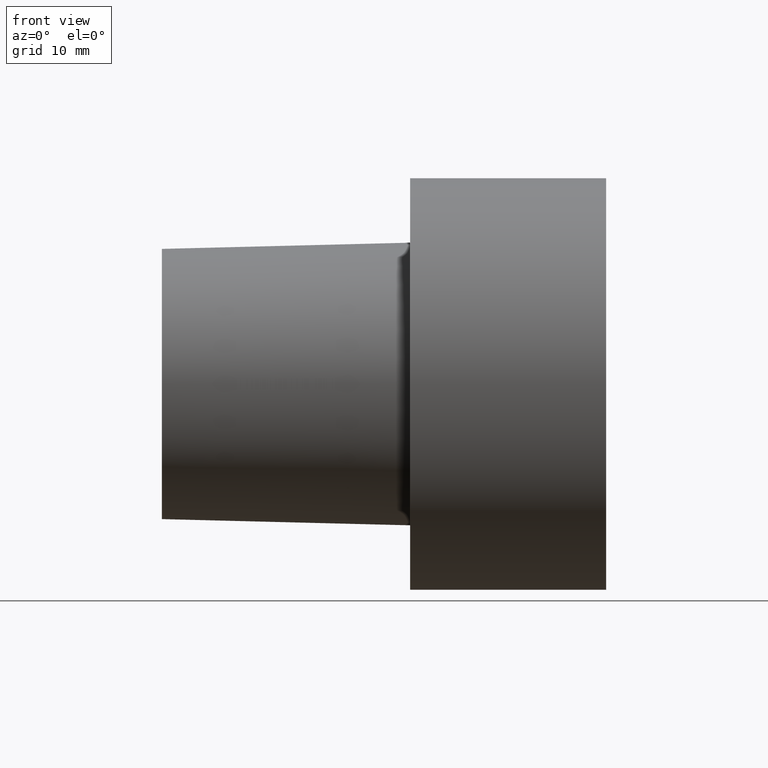
[diagram: clean part render]
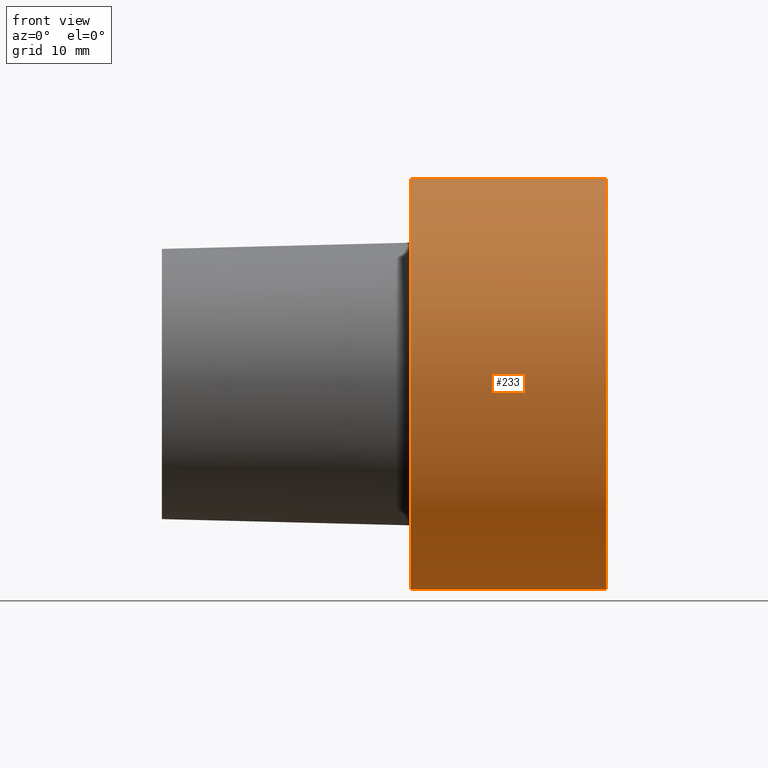
[diagram: same view with one face highlighted and labeled with its STEP entity id]
A machine part, front view. The second image highlights one B-rep face of the part: STEP entity #233.
In plain terms, the highlighted cylindrical surface (partial cylindrical patch) has radius 31.5 mm, axis along (-1, 0, 0).
Its self-contained STEP definition (entity closure, byte-faithful):
#1 = VERTEX_POINT ( 'NONE', #129 ) ;
#7 = ORIENTED_EDGE ( 'NONE', *, *, #242, .F. ) ;
#13 = LINE ( 'NONE', #156, #84 ) ;
#19 = VERTEX_POINT ( 'NONE', #64 ) ;
#33 = CARTESIAN_POINT ( 'NONE',  ( -37.99999996124000035, 0.000000000000000000, 0.000000000000000000 ) ) ;
#64 = CARTESIAN_POINT ( 'NONE',  ( 0.000000000000000000, 0.000000000000000000, 31.49999996787000001 ) ) ;
#66 = DIRECTION ( 'NONE',  ( -1.000000000000000000, 0.000000000000000000, 0.000000000000000000 ) ) ;
#67 = LINE ( 'NONE', #147, #107 ) ;
#68 = AXIS2_PLACEMENT_3D ( 'NONE', #166, #66, #146 ) ;
#72 = CARTESIAN_POINT ( 'NONE',  ( 29.99999996940000102, 3.857637413379370248E-15, -31.49999996787000001 ) ) ;
#80 = ORIENTED_EDGE ( 'NONE', *, *, #248, .F. ) ;
#84 = VECTOR ( 'NONE', #252, 1000.000000000000000 ) ;
#93 = AXIS2_PLACEMENT_3D ( 'NONE', #33, #214, #100 ) ;
#96 = FACE_OUTER_BOUND ( 'NONE', #144, .T. ) ;
#100 = DIRECTION ( 'NONE',  ( 0.000000000000000000, 0.000000000000000000, 1.000000000000000000 ) ) ;
#103 = ORIENTED_EDGE ( 'NONE', *, *, #114, .T. ) ;
#107 = VECTOR ( 'NONE', #196, 1000.000000000000000 ) ;
#108 = CIRCLE ( 'NONE', #122, 31.49999996787000001 ) ;
#111 = CIRCLE ( 'NONE', #68, 31.49999996787000001 ) ;
#114 = EDGE_CURVE ( 'NONE', #228, #1, #111, .T. ) ;
#119 = CARTESIAN_POINT ( 'NONE',  ( 0.000000000000000000, 0.000000000000000000, 0.000000000000000000 ) ) ;
#122 = AXIS2_PLACEMENT_3D ( 'NONE', #119, #155, #230 ) ;
#129 = CARTESIAN_POINT ( 'NONE',  ( 29.99999996940000102, 0.000000000000000000, 31.49999996787000001 ) ) ;
#134 = EDGE_CURVE ( 'NONE', #1, #19, #67, .T. ) ;
#144 = EDGE_LOOP ( 'NONE', ( #80, #103, #183, #7 ) ) ;
#146 = DIRECTION ( 'NONE',  ( 0.000000000000000000, 0.000000000000000000, 1.000000000000000000 ) ) ;
#147 = CARTESIAN_POINT ( 'NONE',  ( -37.99999996124000035, 0.000000000000000000, 31.49999996787000001 ) ) ;
#155 = DIRECTION ( 'NONE',  ( -1.000000000000000000, 0.000000000000000000, 0.000000000000000000 ) ) ;
#156 = CARTESIAN_POINT ( 'NONE',  ( -37.99999996124000035, 3.857637413379370248E-15, -31.49999996787000001 ) ) ;
#166 = CARTESIAN_POINT ( 'NONE',  ( 29.99999996940000102, 0.000000000000000000, 0.000000000000000000 ) ) ;
#177 = CYLINDRICAL_SURFACE ( 'NONE', #93, 31.49999996787000001 ) ;
#183 = ORIENTED_EDGE ( 'NONE', *, *, #134, .T. ) ;
#196 = DIRECTION ( 'NONE',  ( -1.000000000000000000, 0.000000000000000000, 0.000000000000000000 ) ) ;
#205 = VERTEX_POINT ( 'NONE', #251 ) ;
#214 = DIRECTION ( 'NONE',  ( -1.000000000000000000, 0.000000000000000000, 0.000000000000000000 ) ) ;
#228 = VERTEX_POINT ( 'NONE', #72 ) ;
#230 = DIRECTION ( 'NONE',  ( 0.000000000000000000, 0.000000000000000000, 1.000000000000000000 ) ) ;
#233 = ADVANCED_FACE ( 'NONE', ( #96 ), #177, .T. ) ;
#242 = EDGE_CURVE ( 'NONE', #205, #19, #108, .T. ) ;
#248 = EDGE_CURVE ( 'NONE', #228, #205, #13, .T. ) ;
#251 = CARTESIAN_POINT ( 'NONE',  ( 0.000000000000000000, 3.857637413379370248E-15, -31.49999996787000001 ) ) ;
#252 = DIRECTION ( 'NONE',  ( -1.000000000000000000, 0.000000000000000000, 0.000000000000000000 ) ) ;